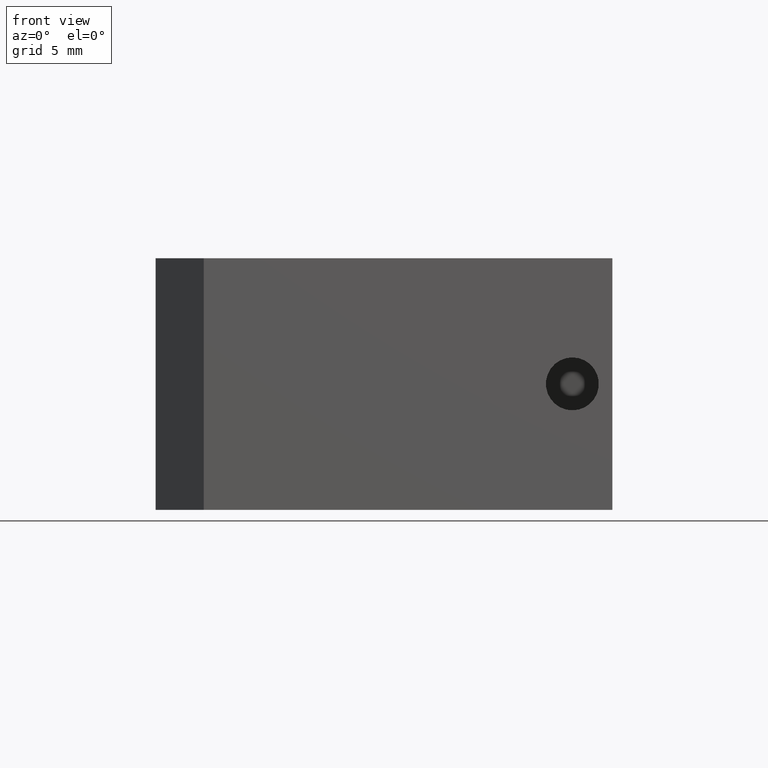
[diagram: clean part render]
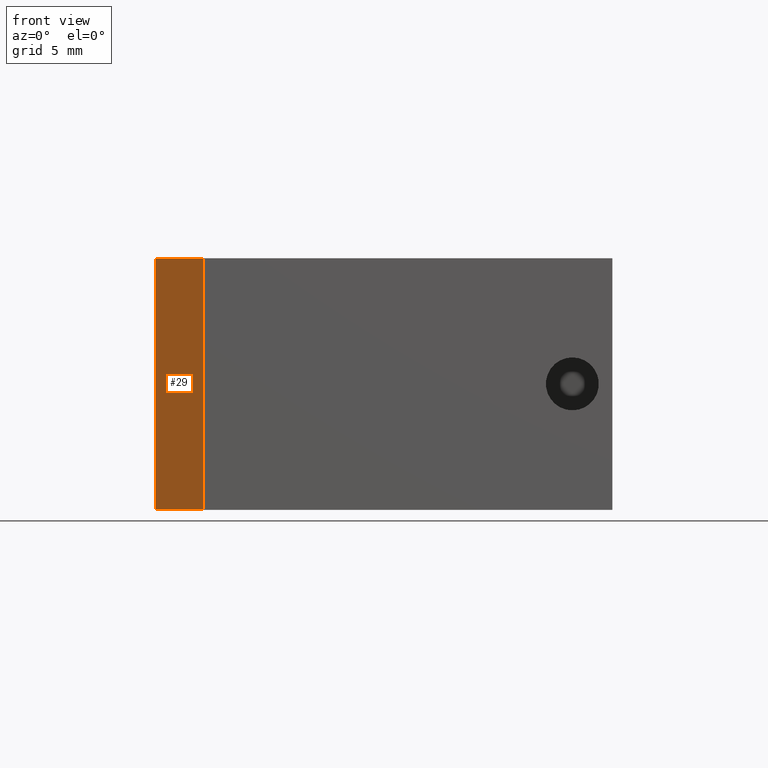
[diagram: same view with one face highlighted and labeled with its STEP entity id]
A machine part, front view. The second image highlights one B-rep face of the part: STEP entity #29.
In plain terms, the highlighted planar face has unit normal (0.7071, 0.7071, 0).
Its self-contained STEP definition (entity closure, byte-faithful):
#22 = CARTESIAN_POINT ( 'NONE',  ( -11.25000000000000500, -16.00000000000000000, 15.69999999999999900 ) ) ;
#25 = DIRECTION ( 'NONE',  ( -0.7071067811865459100, 0.7071067811865491300, -0.0000000000000000000 ) ) ;
#29 = ADVANCED_FACE ( 'NONE', ( #507 ), #565, .F. ) ;
#83 = VERTEX_POINT ( 'NONE', #139 ) ;
#92 = LINE ( 'NONE', #422, #211 ) ;
#127 = VECTOR ( 'NONE', #514, 1000.000000000000000 ) ;
#139 = CARTESIAN_POINT ( 'NONE',  ( -14.25000000000000000, -12.99999999999999100, 15.69999999999999900 ) ) ;
#177 = VECTOR ( 'NONE', #504, 1000.000000000000000 ) ;
#180 = VERTEX_POINT ( 'NONE', #568 ) ;
#192 = CARTESIAN_POINT ( 'NONE',  ( -11.25000000000000500, -16.00000000000000000, 15.69999999999999900 ) ) ;
#193 = DIRECTION ( 'NONE',  ( -0.0000000000000000000, 0.0000000000000000000, -1.000000000000000000 ) ) ;
#203 = ORIENTED_EDGE ( 'NONE', *, *, #208, .F. ) ;
#208 = EDGE_CURVE ( 'NONE', #538, #304, #92, .T. ) ;
#211 = VECTOR ( 'NONE', #25, 1000.000000000000000 ) ;
#231 = EDGE_CURVE ( 'NONE', #180, #538, #244, .T. ) ;
#244 = LINE ( 'NONE', #192, #127 ) ;
#266 = VECTOR ( 'NONE', #269, 1000.000000000000000 ) ;
#269 = DIRECTION ( 'NONE',  ( 0.0000000000000000000, 0.0000000000000000000, 1.000000000000000000 ) ) ;
#270 = ORIENTED_EDGE ( 'NONE', *, *, #349, .F. ) ;
#302 = ORIENTED_EDGE ( 'NONE', *, *, #231, .F. ) ;
#304 = VERTEX_POINT ( 'NONE', #367 ) ;
#349 = EDGE_CURVE ( 'NONE', #83, #180, #532, .T. ) ;
#367 = CARTESIAN_POINT ( 'NONE',  ( -14.25000000000000000, -12.99999999999999100, 0.0000000000000000000 ) ) ;
#389 = EDGE_CURVE ( 'NONE', #304, #83, #391, .T. ) ;
#391 = LINE ( 'NONE', #496, #266 ) ;
#410 = CARTESIAN_POINT ( 'NONE',  ( -13.62500000000002700, -13.62499999999996400, 15.69999999999999900 ) ) ;
#412 = ORIENTED_EDGE ( 'NONE', *, *, #389, .F. ) ;
#422 = CARTESIAN_POINT ( 'NONE',  ( -11.25000000000000500, -16.00000000000000000, 0.0000000000000000000 ) ) ;
#492 = AXIS2_PLACEMENT_3D ( 'NONE', #22, #515, #193 ) ;
#496 = CARTESIAN_POINT ( 'NONE',  ( -14.25000000000000000, -12.99999999999999100, 15.69999999999999900 ) ) ;
#504 = DIRECTION ( 'NONE',  ( 0.7071067811865459100, -0.7071067811865491300, 0.0000000000000000000 ) ) ;
#507 = FACE_OUTER_BOUND ( 'NONE', #574, .T. ) ;
#511 = CARTESIAN_POINT ( 'NONE',  ( -11.25000000000000700, -16.00000000000000000, 0.0000000000000000000 ) ) ;
#514 = DIRECTION ( 'NONE',  ( 0.0000000000000000000, 0.0000000000000000000, -1.000000000000000000 ) ) ;
#515 = DIRECTION ( 'NONE',  ( 0.7071067811865491300, 0.7071067811865459100, 0.0000000000000000000 ) ) ;
#532 = LINE ( 'NONE', #410, #177 ) ;
#538 = VERTEX_POINT ( 'NONE', #511 ) ;
#565 = PLANE ( 'NONE',  #492 ) ;
#568 = CARTESIAN_POINT ( 'NONE',  ( -11.25000000000000700, -16.00000000000000000, 15.69999999999999900 ) ) ;
#574 = EDGE_LOOP ( 'NONE', ( #270, #412, #203, #302 ) ) ;